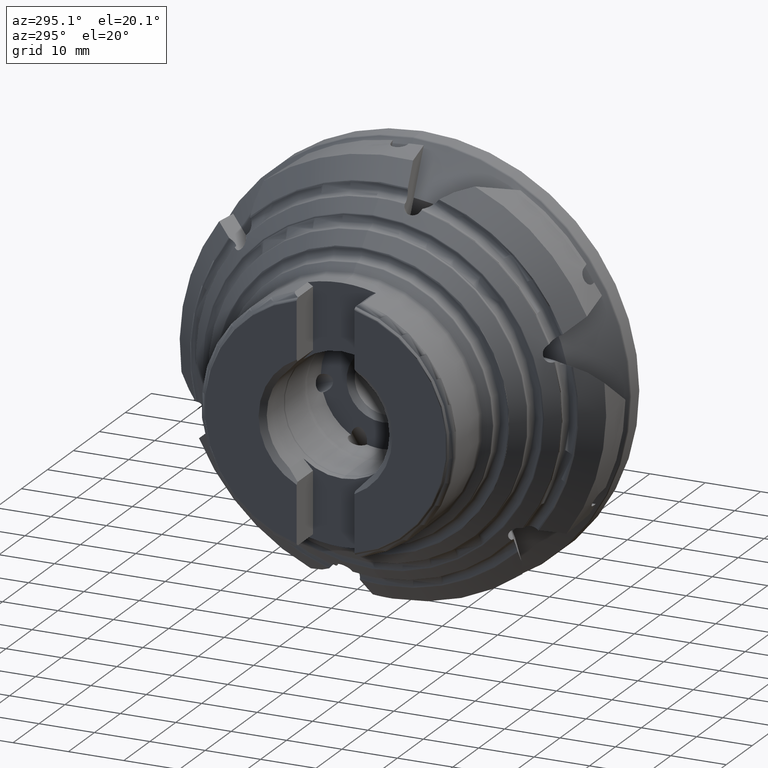
[diagram: clean part render]
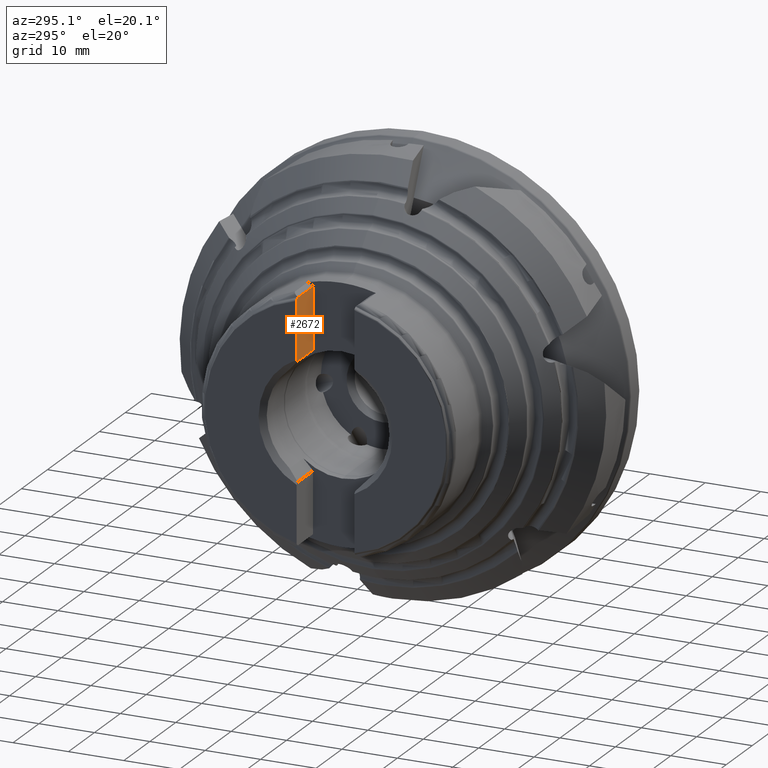
[diagram: same view with one face highlighted and labeled with its STEP entity id]
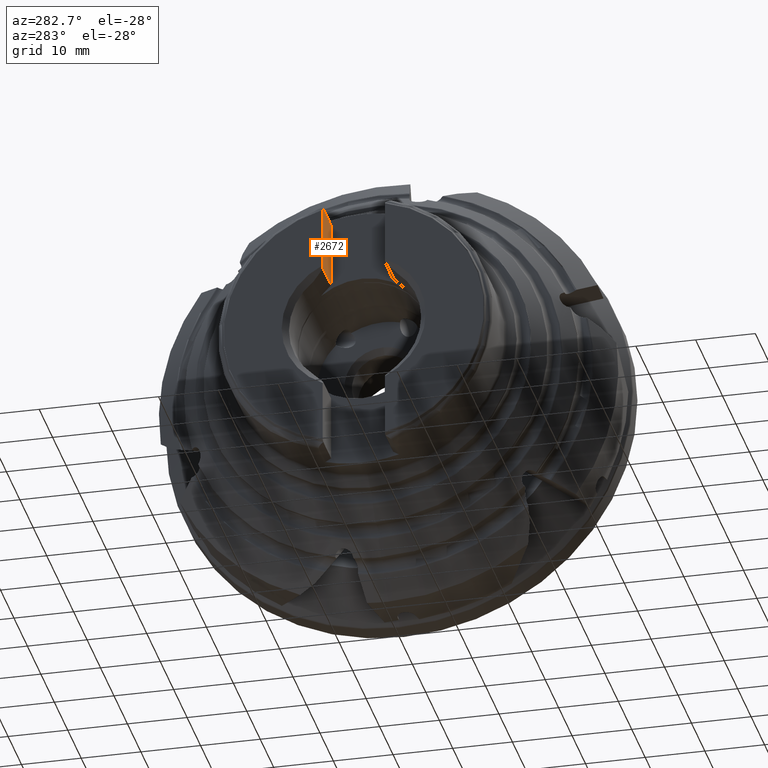
[diagram: same view with one face highlighted and labeled with its STEP entity id]
A machine part, auxiliary view. The second image highlights one B-rep face of the part: STEP entity #2672.
A second angle (auxiliary view) of the same face is appended — the face is thin or edge-on in the first view.
In plain terms, the highlighted planar face has unit normal (-0, 1, 0).
Its self-contained STEP definition (entity closure, byte-faithful):
#764 = LINE ( 'NONE', #8271, #767 ) ;
#767 = VECTOR ( 'NONE', #8272, 1000.000000000000000 ) ;
#768 = VECTOR ( 'NONE', #8194, 1000.000000000000000 ) ;
#802 = LINE ( 'NONE', #8181, #768 ) ;
#922 = FACE_OUTER_BOUND ( 'NONE', #3091, .T. ) ;
#1266 = PLANE ( 'NONE',  #6124 ) ;
#1268 = CARTESIAN_POINT ( 'NONE',  ( -43.64999999999999900, 5.200000000000000200, -29.99999999999999600 ) ) ;
#1273 = DIRECTION ( 'NONE',  ( -0.0000000000000000000, 1.000000000000000000, 0.0000000000000000000 ) ) ;
#1274 = DIRECTION ( 'NONE',  ( 0.0000000000000000000, -0.0000000000000000000, 1.000000000000000000 ) ) ;
#1610 = VERTEX_POINT ( 'NONE', #10359 ) ;
#1614 = VERTEX_POINT ( 'NONE', #10361 ) ;
#1624 = VERTEX_POINT ( 'NONE', #10363 ) ;
#1641 = VERTEX_POINT ( 'NONE', #11680 ) ;
#1680 = VERTEX_POINT ( 'NONE', #11692 ) ;
#1781 = VERTEX_POINT ( 'NONE', #11700 ) ;
#1915 = VERTEX_POINT ( 'NONE', #7999 ) ;
#2132 = CARTESIAN_POINT ( 'NONE',  ( -43.54956494406354000, 5.200000000000000200, 21.33901073031395500 ) ) ;
#2140 = CARTESIAN_POINT ( 'NONE',  ( -43.58021584030910800, 5.200000000000000200, 21.32090200580228500 ) ) ;
#2143 = CARTESIAN_POINT ( 'NONE',  ( -43.60582996178820300, 5.199999999999999300, 21.29452119439736900 ) ) ;
#2144 = CARTESIAN_POINT ( 'NONE',  ( -43.64097179731440000, 5.199999999999999300, 21.23157522510833300 ) ) ;
#2145 = CARTESIAN_POINT ( 'NONE',  ( -43.65000000000000600, 5.200000000000000200, 21.19598720636592800 ) ) ;
#2146 = CARTESIAN_POINT ( 'NONE',  ( -43.64999999999999900, 5.200000000000000200, 21.16043714104224100 ) ) ;
#2672 = ADVANCED_FACE ( 'NONE', ( #922 ), #1266, .F. ) ;
#2964 = ORIENTED_EDGE ( 'NONE', *, *, #5543, .T. ) ;
#2966 = ORIENTED_EDGE ( 'NONE', *, *, #5589, .T. ) ;
#2970 = ORIENTED_EDGE ( 'NONE', *, *, #7278, .T. ) ;
#3091 = EDGE_LOOP ( 'NONE', ( #3240, #3234, #3232, #2970, #2966, #2964, #3233 ) ) ;
#3232 = ORIENTED_EDGE ( 'NONE', *, *, #7218, .T. ) ;
#3233 = ORIENTED_EDGE ( 'NONE', *, *, #5581, .F. ) ;
#3234 = ORIENTED_EDGE ( 'NONE', *, *, #7306, .T. ) ;
#3240 = ORIENTED_EDGE ( 'NONE', *, *, #5489, .F. ) ;
#3887 = VECTOR ( 'NONE', #4522, 1000.000000000000000 ) ;
#3894 = LINE ( 'NONE', #4527, #3887 ) ;
#4522 = DIRECTION ( 'NONE',  ( -0.0000000000000000000, -0.0000000000000000000, 1.000000000000000000 ) ) ;
#4527 = CARTESIAN_POINT ( 'NONE',  ( -37.35000000000000100, 5.200000000000000200, -29.99999999999999600 ) ) ;
#5302 = CARTESIAN_POINT ( 'NONE',  ( -43.41315459714261500, 5.200000000000000200, 10.63509851451836700 ) ) ;
#5303 = CARTESIAN_POINT ( 'NONE',  ( -43.29509713783752300, 5.200000000000000200, 10.50336502842535000 ) ) ;
#5308 = CARTESIAN_POINT ( 'NONE',  ( -43.53146341536322000, 5.200000000000000200, 10.76662511889681900 ) ) ;
#5309 = CARTESIAN_POINT ( 'NONE',  ( -43.64999999999999900, 5.200000000000000200, 10.89796425943854500 ) ) ;
#5489 = EDGE_CURVE ( 'NONE', #1680, #1624, #6845, .T. ) ;
#5543 = EDGE_CURVE ( 'NONE', #1614, #1610, #6873, .T. ) ;
#5581 = EDGE_CURVE ( 'NONE', #1624, #1610, #5806, .T. ) ;
#5589 = EDGE_CURVE ( 'NONE', #1781, #1614, #6890, .T. ) ;
#5806 = LINE ( 'NONE', #10493, #5833 ) ;
#5833 = VECTOR ( 'NONE', #10494, 1000.000000000000000 ) ;
#6124 = AXIS2_PLACEMENT_3D ( 'NONE', #1268, #1273, #1274 ) ;
#6845 = B_SPLINE_CURVE_WITH_KNOTS ( 'NONE', 3,
 ( #5303, #5302, #5308, #5309 ),
 .UNSPECIFIED., .F., .F.,
 ( 4, 4 ),
 ( 0.04614636187794674000, 0.04666258379225236800 ),
 .UNSPECIFIED. ) ;
#6873 = B_SPLINE_CURVE_WITH_KNOTS ( 'NONE', 3,
 ( #2132, #2140, #2143, #2144, #2145, #2146 ),
 .UNSPECIFIED., .F., .F.,
 ( 4, 2, 4 ),
 ( 0.0009052177171980127200, 0.001011889634513538000, 0.001118561551829063500 ),
 .UNSPECIFIED. ) ;
#6890 = B_SPLINE_CURVE_WITH_KNOTS ( 'NONE', 3,
 ( #10515, #10516, #10522, #10523 ),
 .UNSPECIFIED., .F., .F.,
 ( 4, 4 ),
 ( 0.02516430454127281700, 0.02562100060712915400 ),
 .UNSPECIFIED. ) ;
#7218 = EDGE_CURVE ( 'NONE', #1915, #1641, #3894, .T. ) ;
#7278 = EDGE_CURVE ( 'NONE', #1641, #1781, #802, .T. ) ;
#7306 = EDGE_CURVE ( 'NONE', #1680, #1915, #764, .T. ) ;
#7999 = CARTESIAN_POINT ( 'NONE',  ( -37.35000000000000100, 5.200000000000000200, 10.50336502843507700 ) ) ;
#8181 = CARTESIAN_POINT ( 'NONE',  ( -42.14999999999999900, 5.200000000000000200, 21.57126526361855700 ) ) ;
#8194 = DIRECTION ( 'NONE',  ( -1.000000000000000000, 0.0000000000000000000, 0.0000000000000000000 ) ) ;
#8271 = CARTESIAN_POINT ( 'NONE',  ( -43.64999999999999900, 5.200000000000000200, 10.50336502843507700 ) ) ;
#8272 = DIRECTION ( 'NONE',  ( 1.000000000000000000, 0.0000000000000000000, 0.0000000000000000000 ) ) ;
#10359 = CARTESIAN_POINT ( 'NONE',  ( -43.64999999999999900, 5.200000000000000200, 21.16043714104224100 ) ) ;
#10361 = CARTESIAN_POINT ( 'NONE',  ( -43.54956494406354000, 5.200000000000000200, 21.33901073031395500 ) ) ;
#10363 = CARTESIAN_POINT ( 'NONE',  ( -43.64999999999999900, 5.200000000000000200, 10.89796425943854500 ) ) ;
#10493 = CARTESIAN_POINT ( 'NONE',  ( -43.64999999999999900, 5.200000000000000200, -29.99999999999999600 ) ) ;
#10494 = DIRECTION ( 'NONE',  ( -0.0000000000000000000, -0.0000000000000000000, 1.000000000000000000 ) ) ;
#10515 = CARTESIAN_POINT ( 'NONE',  ( -43.15633133572254800, 5.200000000000000200, 21.57126526361067000 ) ) ;
#10516 = CARTESIAN_POINT ( 'NONE',  ( -43.28741926086898000, 5.200000000000000200, 21.49386427266407700 ) ) ;
#10522 = CARTESIAN_POINT ( 'NONE',  ( -43.41849723819383700, 5.200000000000000200, 21.41644627927924600 ) ) ;
#10523 = CARTESIAN_POINT ( 'NONE',  ( -43.54956494406354000, 5.200000000000000200, 21.33901073031395500 ) ) ;
#11680 = CARTESIAN_POINT ( 'NONE',  ( -37.35000000000000100, 5.200000000000000200, 21.57126526361855300 ) ) ;
#11692 = CARTESIAN_POINT ( 'NONE',  ( -43.29509713783752300, 5.200000000000000200, 10.50336502842535000 ) ) ;
#11700 = CARTESIAN_POINT ( 'NONE',  ( -43.15633133572254800, 5.200000000000000200, 21.57126526361067000 ) ) ;